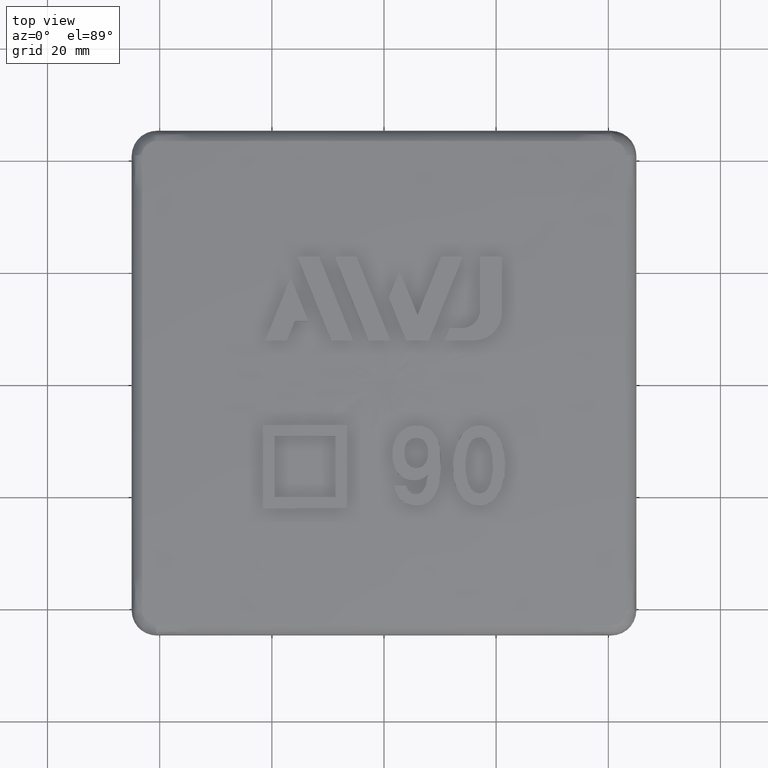
[diagram: clean part render]
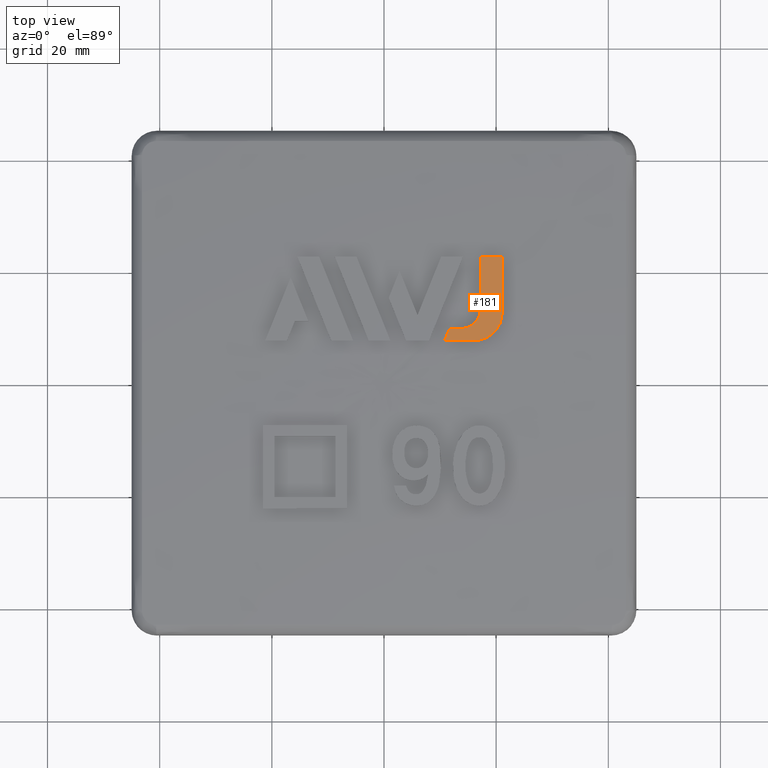
[diagram: same view with one face highlighted and labeled with its STEP entity id]
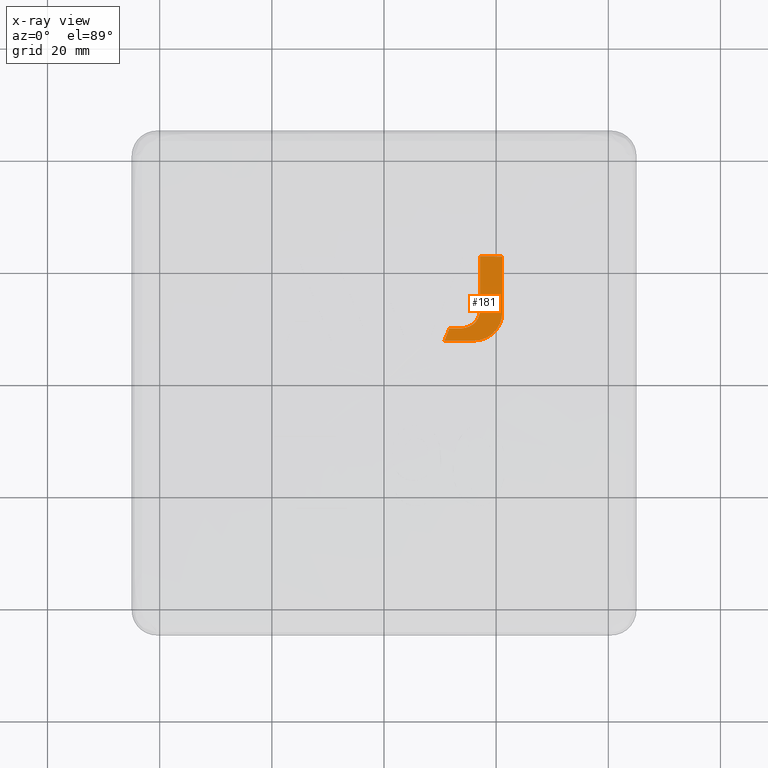
[diagram: x-ray of the same camera — body ghosted, the highlighted face saturated]
A machine part, top view. The second image highlights one B-rep face of the part: STEP entity #181.
The next image is the same camera in x-ray: the body ghosted, the highlighted face saturated — about 0% of this face is hidden behind the body in this view.
In plain terms, the highlighted face is a freeform B-spline surface patch.
Its self-contained STEP definition (entity closure, byte-faithful):
#181 = ADVANCED_FACE( '', ( #547 ), #548, .T. );
#547 = FACE_OUTER_BOUND( '', #2260, .T. );
#548 = ( B_SPLINE_SURFACE( 3, 3, ( ( #2262, #2263, #2264, #2265 ), ( #2266, #2267, #2268, #2269 ), ( #2270, #2271, #2272, #2273 ), ( #2274, #2275, #2276, #2277 ) ), .UNSPECIFIED., .F., .F., .F. )B_SPLINE_SURFACE_WITH_KNOTS( ( 4, 4 ), ( 4, 4 ), ( 1.97785392212156, 2.49309351764244 ), ( 1.52233191050887, 1.55483152124292 ), .UNSPECIFIED. )RATIONAL_B_SPLINE_SURFACE( ( ( 1.00000000000000, 0.977999429192349, 0.977999429192349, 1.00000000000000 ), ( 0.999911983211985, 0.977913348823910, 0.977913348823910, 0.999911983211985 ), ( 0.999911983211985, 0.977913348823910, 0.977913348823910, 0.999911983211985 ), ( 1.00000000000000, 0.977999429192349, 0.977999429192349, 1.00000000000000 ) ) )BOUNDED_SURFACE(  )REPRESENTATION_ITEM( '' )GEOMETRIC_REPRESENTATION_ITEM(  )SURFACE(  ) );
#2260 = EDGE_LOOP( '', ( #4423, #4424, #4425, #4426, #4427, #4428, #4429, #4430 ) );
#2262 = CARTESIAN_POINT( '', ( 11.9783717373700, 5.16432434718596, 28.4463139787487 ) );
#2263 = CARTESIAN_POINT( '', ( 11.0814628251136, 7.24465618602974, 28.4463139787488 ) );
#2264 = CARTESIAN_POINT( '', ( 9.68412651485659, 9.02782117913314, 28.4463139787488 ) );
#2265 = CARTESIAN_POINT( '', ( 7.87858939590672, 10.3961273834187, 28.4463139787487 ) );
#2266 = CARTESIAN_POINT( '', ( 17.4542995804112, 7.52520177721475, 28.3511048642077 ) );
#2267 = CARTESIAN_POINT( '', ( 16.1473676205336, 10.5565599566045, 28.3511048642076 ) );
#2268 = CARTESIAN_POINT( '', ( 14.1112372425022, 13.1549010895507, 28.3511048642076 ) );
#2269 = CARTESIAN_POINT( '', ( 11.4802965379834, 15.1487302118199, 28.3511048642076 ) );
#2270 = CARTESIAN_POINT( '', ( 22.9280838124154, 9.88515501630067, 28.1590120530558 ) );
#2271 = CARTESIAN_POINT( '', ( 21.2112893128625, 13.8671672467142, 28.1590120530558 ) );
#2272 = CARTESIAN_POINT( '', ( 18.5366149298868, 17.2803654100078, 28.1590120530558 ) );
#2273 = CARTESIAN_POINT( '', ( 15.0805937529385, 19.8994725825654, 28.1590120530558 ) );
#2274 = CARTESIAN_POINT( '', ( 28.3982790786632, 12.2435609179318, 27.8700862674698 ) );
#2275 = CARTESIAN_POINT( '', ( 26.2718907717338, 17.1756038892986, 27.8700862674698 ) );
#2276 = CARTESIAN_POINT( '', ( 22.9590910544209, 21.4031248101489, 27.8700862674698 ) );
#2277 = CARTESIAN_POINT( '', ( 18.6785303809815, 24.6471000604026, 27.8700862674698 ) );
#4423 = ORIENTED_EDGE( '', *, *, #5815, .T. );
#4424 = ORIENTED_EDGE( '', *, *, #5661, .T. );
#4425 = ORIENTED_EDGE( '', *, *, #5797, .T. );
#4426 = ORIENTED_EDGE( '', *, *, #5800, .T. );
#4427 = ORIENTED_EDGE( '', *, *, #5803, .T. );
#4428 = ORIENTED_EDGE( '', *, *, #5806, .T. );
#4429 = ORIENTED_EDGE( '', *, *, #5809, .T. );
#4430 = ORIENTED_EDGE( '', *, *, #5812, .T. );
#5661 = EDGE_CURVE( '', #6426, #6427, #6428, .T. );
#5797 = EDGE_CURVE( '', #6427, #6660, #6661, .T. );
#5800 = EDGE_CURVE( '', #6660, #6665, #6666, .T. );
#5803 = EDGE_CURVE( '', #6665, #6670, #6671, .T. );
#5806 = EDGE_CURVE( '', #6670, #6675, #6676, .T. );
#5809 = EDGE_CURVE( '', #6675, #6680, #6681, .T. );
#5812 = EDGE_CURVE( '', #6680, #6685, #6686, .T. );
#5815 = EDGE_CURVE( '', #6685, #6426, #6690, .T. );
#6426 = VERTEX_POINT( '', #8730 );
#6427 = VERTEX_POINT( '', #8731 );
#6428 = B_SPLINE_CURVE_WITH_KNOTS( '', 3, ( #8732, #8733, #8734, #8735, #8736, #8737 ), .UNSPECIFIED., .F., .F., ( 4, 2, 4 ), ( 3.49745432760513, 3.50245086997594, 3.50744741234676 ), .UNSPECIFIED. );
#6660 = VERTEX_POINT( '', #9107 );
#6661 = B_SPLINE_CURVE_WITH_KNOTS( '', 3, ( #9108, #9109, #9110, #9111, #9112, #9113 ), .UNSPECIFIED., .F., .F., ( 4, 2, 4 ), ( 3.49989810963311, 3.50185745708917, 3.50381680454523 ), .UNSPECIFIED. );
#6665 = VERTEX_POINT( '', #9123 );
#6666 = B_SPLINE_CURVE_WITH_KNOTS( '', 3, ( #9124, #9125, #9126, #9127, #9128, #9129 ), .UNSPECIFIED., .F., .F., ( 4, 2, 4 ), ( 3.49911927221372, 3.50385972551742, 3.50860017882112 ), .UNSPECIFIED. );
#6670 = VERTEX_POINT( '', #9139 );
#6671 = B_SPLINE_CURVE_WITH_KNOTS( '', 3, ( #9140, #9141, #9142, #9143, #9144, #9145, #9146, #9147, #9148, #9149, #9150, #9151, #9152, #9153, #9154, #9155, #9156, #9157 ), .UNSPECIFIED., .F., .F., ( 4, 2, 2, 2, 2, 2, 2, 2, 4 ), ( 1.97196944552546E-007, 0.000651613864135656, 0.00130303053132676, 0.00195444719851786, 0.00260586386570897, 0.00325728053290007, 0.00390869720009118, 0.00456011386728229, 0.00521153053447339 ), .UNSPECIFIED. );
#6675 = VERTEX_POINT( '', #9179 );
#6676 = B_SPLINE_CURVE_WITH_KNOTS( '', 3, ( #9180, #9181, #9182, #9183, #9184, #9185 ), .UNSPECIFIED., .F., .F., ( 4, 2, 4 ), ( 3.50566113370097, 3.50672623854534, 3.50779134338971 ), .UNSPECIFIED. );
#6680 = VERTEX_POINT( '', #9195 );
#6681 = B_SPLINE_CURVE_WITH_KNOTS( '', 3, ( #9196, #9197, #9198, #9199 ), .UNSPECIFIED., .F., .F., ( 4, 4 ), ( 2.15739318841970E-007, 0.00235254167268512 ), .UNSPECIFIED. );
#6685 = VERTEX_POINT( '', #9207 );
#6686 = B_SPLINE_CURVE_WITH_KNOTS( '', 3, ( #9208, #9209, #9210, #9211, #9212, #9213 ), .UNSPECIFIED., .F., .F., ( 4, 2, 4 ), ( 3.50385466662398, 3.50648696611910, 3.50911926561422 ), .UNSPECIFIED. );
#6690 = B_SPLINE_CURVE_WITH_KNOTS( '', 3, ( #9223, #9224, #9225, #9226, #9227, #9228, #9229, #9230, #9231, #9232, #9233, #9234, #9235, #9236, #9237, #9238, #9239, #9240, #9241, #9242 ), .UNSPECIFIED., .F., .F., ( 4, 2, 2, 2, 2, 2, 2, 2, 2, 4 ), ( 1.97209636789434E-007, 0.000977377998424183, 0.00146596839281788, 0.00195455878721158, 0.00293173957599899, 0.00390892036478639, 0.00488610115357379, 0.00586328194236119, 0.00684046273114860, 0.00781764351993600 ), .UNSPECIFIED. );
#8730 = CARTESIAN_POINT( '', ( 21.0716151249999, 12.4962499999997, 28.1441755024458 ) );
#8731 = CARTESIAN_POINT( '', ( 21.0716151250000, 22.4902711799997, 27.8752148300632 ) );
#8732 = CARTESIAN_POINT( '', ( 21.0716151249999, 12.4962499999998, 28.1441755024460 ) );
#8733 = CARTESIAN_POINT( '', ( 21.0716151249999, 14.1626520187586, 28.1128988120625 ) );
#8734 = CARTESIAN_POINT( '', ( 21.0716151249999, 15.8289673603127, 28.0750179056657 ) );
#8735 = CARTESIAN_POINT( '', ( 21.0716151249999, 19.1614173606625, 27.9854892902912 ) );
#8736 = CARTESIAN_POINT( '', ( 21.0716151249999, 20.8255986480239, 27.9339004947124 ) );
#8737 = CARTESIAN_POINT( '', ( 21.0716151249999, 22.4902711799997, 27.8752148300632 ) );
#9107 = CARTESIAN_POINT( '', ( 17.1524131699999, 22.4902711799997, 27.9918077682990 ) );
#9108 = CARTESIAN_POINT( '', ( 21.0716151250000, 22.4902711799997, 27.8752148300633 ) );
#9109 = CARTESIAN_POINT( '', ( 20.4182882253856, 22.4902711799997, 27.8967941069327 ) );
#9110 = CARTESIAN_POINT( '', ( 19.7644382767462, 22.4902711799997, 27.9173090030809 ) );
#9111 = CARTESIAN_POINT( '', ( 18.4584363325951, 22.4902711799997, 27.9561515954391 ) );
#9112 = CARTESIAN_POINT( '', ( 17.8054282577283, 22.4902711799997, 27.9745062501252 ) );
#9113 = CARTESIAN_POINT( '', ( 17.1524131699999, 22.4902711799997, 27.9918077682989 ) );
#9123 = CARTESIAN_POINT( '', ( 17.1524131699999, 13.0095281774997, 28.2454448121018 ) );
#9124 = CARTESIAN_POINT( '', ( 17.1524131699999, 22.4902711799998, 27.9918077682990 ) );
#9125 = CARTESIAN_POINT( '', ( 17.1524131699999, 20.9103246435527, 28.0466951926275 ) );
#9126 = CARTESIAN_POINT( '', ( 17.1524131699999, 19.3291440001481, 28.0951722898819 ) );
#9127 = CARTESIAN_POINT( '', ( 17.1524131699999, 16.1694088997292, 28.1795407124944 ) );
#9128 = CARTESIAN_POINT( '', ( 17.1524131699999, 14.5894920471741, 28.2154735632607 ) );
#9129 = CARTESIAN_POINT( '', ( 17.1524131699999, 13.0095281774997, 28.2454448121020 ) );
#9139 = CARTESIAN_POINT( '', ( 13.8174131699999, 9.67452817749973, 28.3719842941140 ) );
#9140 = CARTESIAN_POINT( '', ( 17.1524131699999, 13.0095281774997, 28.2454448121019 ) );
#9141 = CARTESIAN_POINT( '', ( 17.1524131699999, 12.7893038951019, 28.2496223739407 ) );
#9142 = CARTESIAN_POINT( '', ( 17.1308138902528, 12.5727653698233, 28.2541557063310 ) );
#9143 = CARTESIAN_POINT( '', ( 17.0461917886356, 12.1467566463381, 28.2638915063297 ) );
#9144 = CARTESIAN_POINT( '', ( 16.9821449417215, 11.9350846998872, 28.2691556667757 ) );
#9145 = CARTESIAN_POINT( '', ( 16.8149271769411, 11.5313990384462, 28.2800556834942 ) );
#9146 = CARTESIAN_POINT( '', ( 16.7126017502965, 11.3399339648504, 28.2856648128959 ) );
#9147 = CARTESIAN_POINT( '', ( 16.4708632475826, 10.9775674406329, 28.2971863803524 ) );
#9148 = CARTESIAN_POINT( '', ( 16.3301525317627, 10.8059759217981, 28.3031364571383 ) );
#9149 = CARTESIAN_POINT( '', ( 16.0227676781978, 10.4983704490942, 28.3148328978503 ) );
#9150 = CARTESIAN_POINT( '', ( 15.8550492630888, 10.3603246588784, 28.3206380325462 ) );
#9151 = CARTESIAN_POINT( '', ( 15.4909005144165, 10.1164882125128, 28.3321565356200 ) );
#9152 = CARTESIAN_POINT( '', ( 15.2969253774478, 10.0127983668593, 28.3377833350860 ) );
#9153 = CARTESIAN_POINT( '', ( 14.8959762905619, 9.84629446420375, 28.3484881123293 ) );
#9154 = CARTESIAN_POINT( '', ( 14.6863289873390, 9.78222660675332, 28.3536402102503 ) );
#9155 = CARTESIAN_POINT( '', ( 14.2554601621246, 9.69613038084828, 28.3633571959013 ) );
#9156 = CARTESIAN_POINT( '', ( 14.0376387637020, 9.67452817749885, 28.3678503020227 ) );
#9157 = CARTESIAN_POINT( '', ( 13.8174131700000, 9.67452817749884, 28.3719842941140 ) );
#9179 = CARTESIAN_POINT( '', ( 11.6872702974999, 9.67452817749973, 28.4082280269577 ) );
#9180 = CARTESIAN_POINT( '', ( 13.8174131699997, 9.67452817749973, 28.3719842941140 ) );
#9181 = CARTESIAN_POINT( '', ( 13.4623922647319, 9.67452817749973, 28.3786486131424 ) );
#9182 = CARTESIAN_POINT( '', ( 13.1072988358508, 9.67452817749973, 28.3849989968994 ) );
#9183 = CARTESIAN_POINT( '', ( 12.3972872618878, 9.67452817749973, 28.3970760078427 ) );
#9184 = CARTESIAN_POINT( '', ( 12.0422796667700, 9.67452817749973, 28.4028042388284 ) );
#9185 = CARTESIAN_POINT( '', ( 11.6872702974999, 9.67452817749973, 28.4082280269576 ) );
#9195 = CARTESIAN_POINT( '', ( 10.8061799725000, 7.49374999999970, 28.4446103924476 ) );
#9196 = CARTESIAN_POINT( '', ( 11.6872702974999, 9.67452817749973, 28.4082280269578 ) );
#9197 = CARTESIAN_POINT( '', ( 11.3935830940484, 8.94762580878056, 28.4219079095970 ) );
#9198 = CARTESIAN_POINT( '', ( 11.0998850720491, 8.22069666317793, 28.4340165403355 ) );
#9199 = CARTESIAN_POINT( '', ( 10.8061799725000, 7.49374999999970, 28.4446103924477 ) );
#9207 = CARTESIAN_POINT( '', ( 16.0691151249999, 7.49374999999970, 28.3515332571752 ) );
#9208 = CARTESIAN_POINT( '', ( 10.8061799725001, 7.49374999999970, 28.4446103924476 ) );
#9209 = CARTESIAN_POINT( '', ( 11.6831922239161, 7.49374999999970, 28.4329649863922 ) );
#9210 = CARTESIAN_POINT( '', ( 12.5601900599459, 7.49374999999970, 28.4194395145813 ) );
#9211 = CARTESIAN_POINT( '', ( 14.3141556363783, 7.49374999999970, 28.3884634761160 ) );
#9212 = CARTESIAN_POINT( '', ( 15.1918625313156, 7.49374999999970, 28.3709995234689 ) );
#9213 = CARTESIAN_POINT( '', ( 16.0691151249999, 7.49374999999970, 28.3515332571751 ) );
#9223 = CARTESIAN_POINT( '', ( 16.0691151249999, 7.49374999999970, 28.3515332571752 ) );
#9224 = CARTESIAN_POINT( '', ( 16.3994497104913, 7.49374999999971, 28.3442031209596 ) );
#9225 = CARTESIAN_POINT( '', ( 16.7242538462811, 7.52614858873973, 28.3363776178204 ) );
#9226 = CARTESIAN_POINT( '', ( 17.2035050599497, 7.62134560518669, 28.3239071420150 ) );
#9227 = CARTESIAN_POINT( '', ( 17.3619197831639, 7.66090218966187, 28.3196275439919 ) );
#9228 = CARTESIAN_POINT( '', ( 17.6760173335114, 7.75601818885476, 28.3108155153308 ) );
#9229 = CARTESIAN_POINT( '', ( 17.8321345660609, 7.81184859041487, 28.3062681654980 ) );
#9230 = CARTESIAN_POINT( '', ( 18.2862753221990, 7.99996282359816, 28.2925357942631 ) );
#9231 = CARTESIAN_POINT( '', ( 18.5734679877704, 8.15344564014364, 28.2831740153278 ) );
#9232 = CARTESIAN_POINT( '', ( 19.1170064199778, 8.51603749018953, 28.2640458106337 ) );
#9233 = CARTESIAN_POINT( '', ( 19.3743926692606, 8.72709665083989, 28.2542183892111 ) );
#9234 = CARTESIAN_POINT( '', ( 19.8358028531799, 9.18816291341102, 28.2350001254396 ) );
#9235 = CARTESIAN_POINT( '', ( 20.0428721794796, 9.43973383857604, 28.2255111830840 ) );
#9236 = CARTESIAN_POINT( '', ( 20.4086291133269, 9.98594035412218, 28.2068027572763 ) );
#9237 = CARTESIAN_POINT( '', ( 20.5641757251569, 10.2769118851855, 28.1977245391309 ) );
#9238 = CARTESIAN_POINT( '', ( 20.8139440060268, 10.8783407452131, 28.1806072368967 ) );
#9239 = CARTESIAN_POINT( '', ( 20.9100494611343, 11.1928049102433, 28.1724490686301 ) );
#9240 = CARTESIAN_POINT( '', ( 21.0392079071708, 11.8391411160335, 28.1572776845734 ) );
#9241 = CARTESIAN_POINT( '', ( 21.0716151250005, 12.1658912952746, 28.1503760031695 ) );
#9242 = CARTESIAN_POINT( '', ( 21.0716151250005, 12.4962499999996, 28.1441755024459 ) );